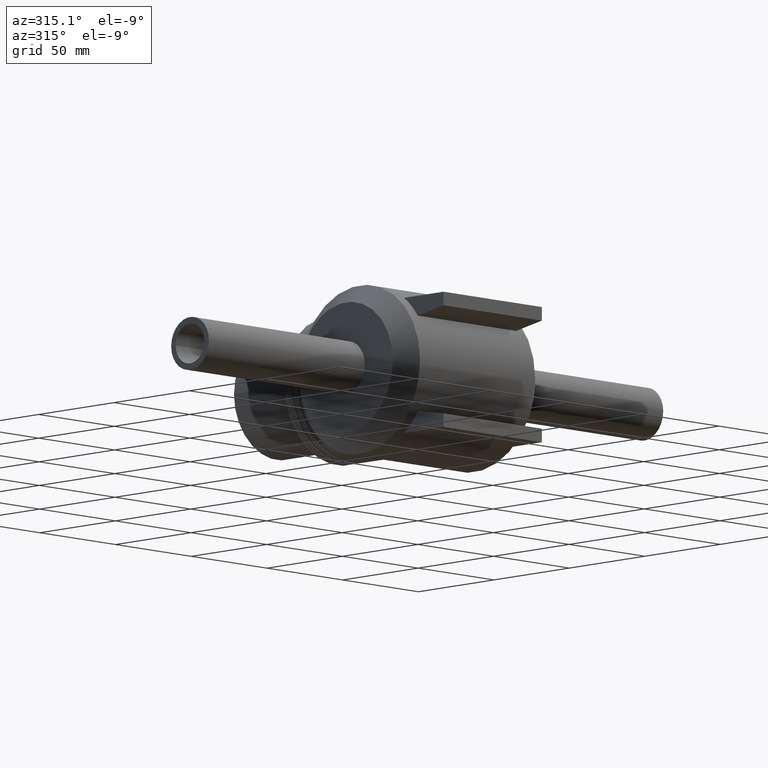
[diagram: clean part render]
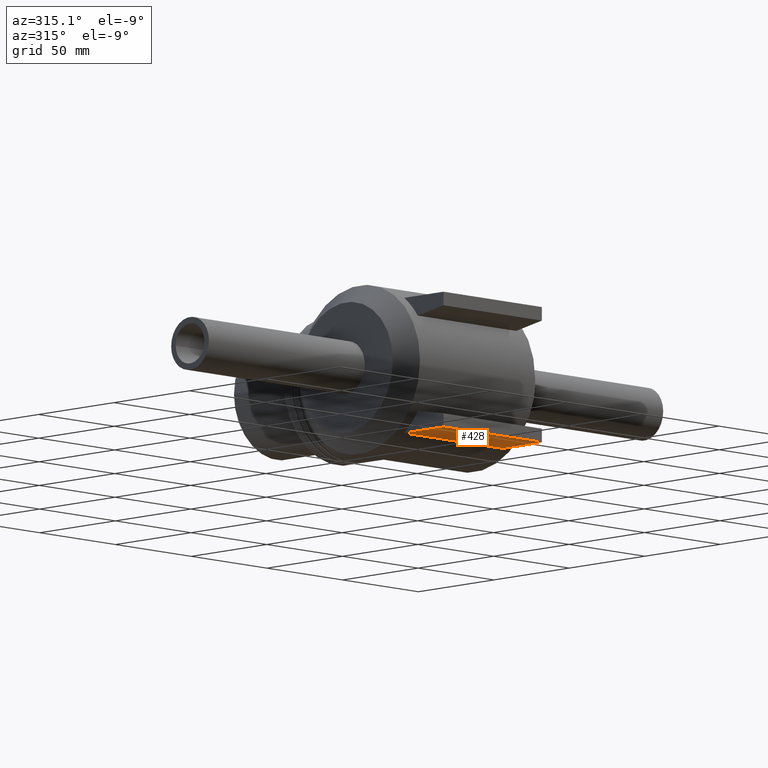
[diagram: same view with one face highlighted and labeled with its STEP entity id]
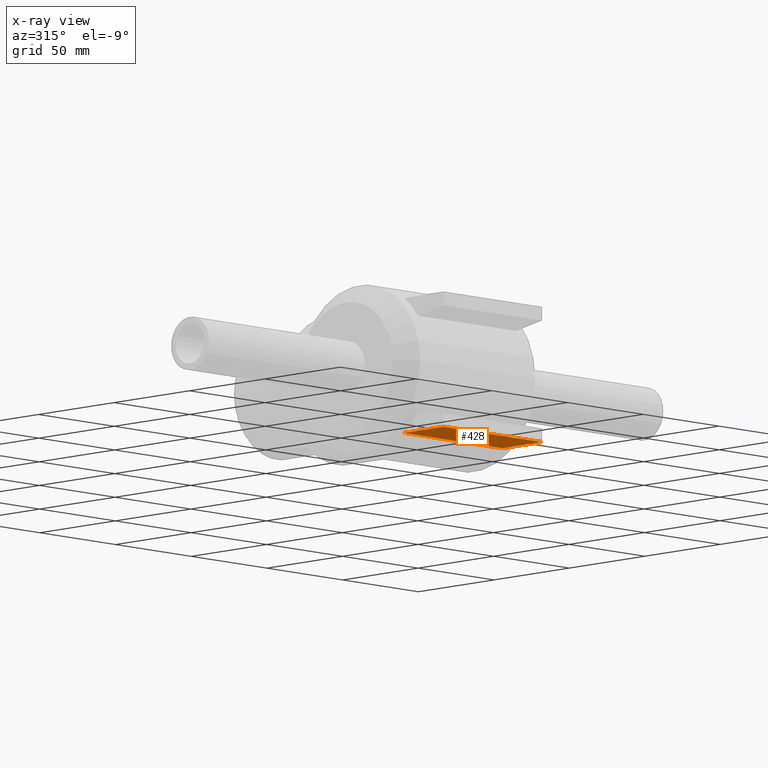
[diagram: x-ray of the same camera — body ghosted, the highlighted face saturated]
A machine part, auxiliary view. The second image highlights one B-rep face of the part: STEP entity #428.
The next image is the same camera in x-ray: the body ghosted, the highlighted face saturated — about 0% of this face is hidden behind the body in this view.
In plain terms, the highlighted planar face has unit normal (0, 0, 1).
Its self-contained STEP definition (entity closure, byte-faithful):
#23=PLANE('',#478);
#41=LINE('',#895,#61);
#42=LINE('',#923,#62);
#47=LINE('',#933,#67);
#49=LINE('',#936,#69);
#61=VECTOR('',#531,65.);
#62=VECTOR('',#568,26.);
#67=VECTOR('',#577,65.);
#69=VECTOR('',#581,26.);
#127=FACE_OUTER_BOUND('',#172,.T.);
#172=EDGE_LOOP('',(#362,#363,#364,#365));
#238=VERTEX_POINT('',#888);
#241=VERTEX_POINT('',#893);
#250=VERTEX_POINT('',#922);
#253=VERTEX_POINT('',#932);
#281=EDGE_CURVE('',#241,#238,#41,.T.);
#290=EDGE_CURVE('',#250,#238,#42,.T.);
#295=EDGE_CURVE('',#250,#253,#47,.T.);
#297=EDGE_CURVE('',#241,#253,#49,.T.);
#362=ORIENTED_EDGE('',*,*,#295,.F.);
#363=ORIENTED_EDGE('',*,*,#290,.T.);
#364=ORIENTED_EDGE('',*,*,#281,.F.);
#365=ORIENTED_EDGE('',*,*,#297,.T.);
#428=ADVANCED_FACE('',(#127),#23,.F.);
#478=AXIS2_PLACEMENT_3D('',#935,#579,#580);
#531=DIRECTION('',(-1.,0.,0.));
#568=DIRECTION('',(0.,1.,0.));
#577=DIRECTION('',(1.,0.,0.));
#579=DIRECTION('center_axis',(0.,0.,1.));
#580=DIRECTION('ref_axis',(0.,-1.,0.));
#581=DIRECTION('',(0.,-1.,0.));
#888=CARTESIAN_POINT('',(-32.5,-24.,-32.));
#893=CARTESIAN_POINT('',(32.5,-24.,-32.));
#895=CARTESIAN_POINT('',(0.,-24.,-32.));
#922=CARTESIAN_POINT('',(-32.5,-50.,-32.));
#923=CARTESIAN_POINT('',(-32.5,-24.,-32.));
#932=CARTESIAN_POINT('',(32.5,-50.,-32.));
#933=CARTESIAN_POINT('',(0.,-50.,-32.));
#935=CARTESIAN_POINT('Origin',(0.,-24.,-32.));
#936=CARTESIAN_POINT('',(32.5,-24.,-32.));